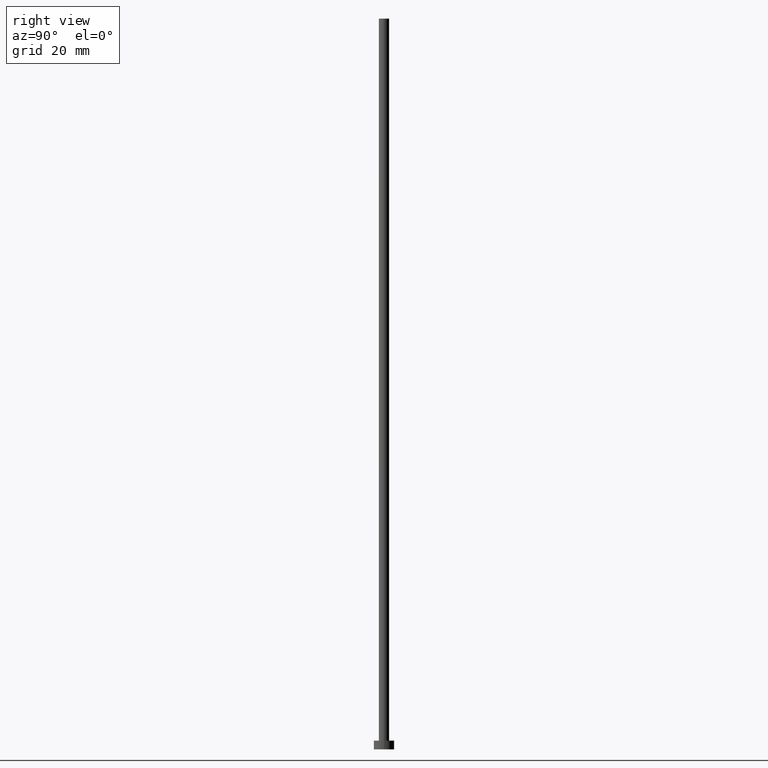
[diagram: clean part render]
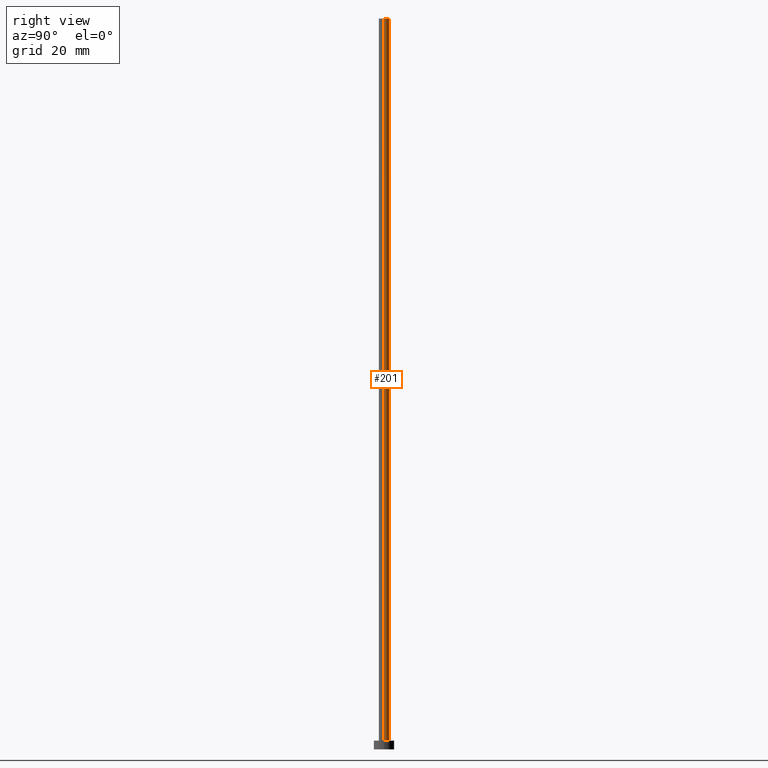
[diagram: same view with one face highlighted and labeled with its STEP entity id]
A machine part, right view. The second image highlights one B-rep face of the part: STEP entity #201.
In plain terms, the highlighted cylindrical surface (edge-blend (fillet) strip) has radius 1.75 mm, axis along (-0, -0, -1).
Its self-contained STEP definition (entity closure, byte-faithful):
#9 = AXIS2_PLACEMENT_3D ( 'NONE', #12, #167, #247 ) ;
#12 = CARTESIAN_POINT ( 'NONE',  ( 0.000000000000000000, 0.000000000000000000, 3.000000000000000000 ) ) ;
#18 = VECTOR ( 'NONE', #68, 1000.000000000000000 ) ;
#33 = VERTEX_POINT ( 'NONE', #185 ) ;
#37 = EDGE_CURVE ( 'NONE', #133, #110, #192, .T. ) ;
#39 = LINE ( 'NONE', #188, #205 ) ;
#49 = LINE ( 'NONE', #243, #18 ) ;
#56 = DIRECTION ( 'NONE',  ( -1.000000000000000000, 0.000000000000000000, 0.000000000000000000 ) ) ;
#68 = DIRECTION ( 'NONE',  ( -0.000000000000000000, -0.000000000000000000, -1.000000000000000000 ) ) ;
#74 = CARTESIAN_POINT ( 'NONE',  ( -1.750000000000000000, 0.000000000000000000, 3.000000000000000000 ) ) ;
#77 = AXIS2_PLACEMENT_3D ( 'NONE', #131, #197, #88 ) ;
#88 = DIRECTION ( 'NONE',  ( 1.000000000000000000, 0.000000000000000000, 0.000000000000000000 ) ) ;
#97 = EDGE_CURVE ( 'NONE', #110, #149, #49, .T. ) ;
#110 = VERTEX_POINT ( 'NONE', #138 ) ;
#111 = EDGE_LOOP ( 'NONE', ( #224, #152, #237, #203 ) ) ;
#114 = DIRECTION ( 'NONE',  ( -0.000000000000000000, -0.000000000000000000, -1.000000000000000000 ) ) ;
#131 = CARTESIAN_POINT ( 'NONE',  ( 0.000000000000000000, 0.000000000000000000, 250.0000000000000000 ) ) ;
#133 = VERTEX_POINT ( 'NONE', #155 ) ;
#138 = CARTESIAN_POINT ( 'NONE',  ( -1.750000000000000000, 0.000000000000000000, 250.0000000000000000 ) ) ;
#149 = VERTEX_POINT ( 'NONE', #74 ) ;
#152 = ORIENTED_EDGE ( 'NONE', *, *, #219, .T. ) ;
#155 = CARTESIAN_POINT ( 'NONE',  ( 1.750000000000000000, 2.143131898507868297E-16, 250.0000000000000000 ) ) ;
#167 = DIRECTION ( 'NONE',  ( 0.000000000000000000, 0.000000000000000000, 1.000000000000000000 ) ) ;
#185 = CARTESIAN_POINT ( 'NONE',  ( 1.750000000000000000, 2.143131898507868297E-16, 3.000000000000000000 ) ) ;
#186 = CYLINDRICAL_SURFACE ( 'NONE', #214, 1.750000000000000000 ) ;
#188 = CARTESIAN_POINT ( 'NONE',  ( 1.750000000000000000, 2.143131898507868297E-16, 250.0000000000000000 ) ) ;
#192 = CIRCLE ( 'NONE', #77, 1.750000000000000000 ) ;
#197 = DIRECTION ( 'NONE',  ( 0.000000000000000000, 0.000000000000000000, 1.000000000000000000 ) ) ;
#201 = ADVANCED_FACE ( 'NONE', ( #208 ), #186, .T. ) ;
#203 = ORIENTED_EDGE ( 'NONE', *, *, #97, .F. ) ;
#205 = VECTOR ( 'NONE', #114, 1000.000000000000000 ) ;
#206 = DIRECTION ( 'NONE',  ( -0.000000000000000000, -0.000000000000000000, -1.000000000000000000 ) ) ;
#208 = FACE_OUTER_BOUND ( 'NONE', #111, .T. ) ;
#210 = CARTESIAN_POINT ( 'NONE',  ( 0.000000000000000000, 0.000000000000000000, 250.0000000000000000 ) ) ;
#214 = AXIS2_PLACEMENT_3D ( 'NONE', #210, #206, #56 ) ;
#219 = EDGE_CURVE ( 'NONE', #133, #33, #39, .T. ) ;
#224 = ORIENTED_EDGE ( 'NONE', *, *, #37, .F. ) ;
#231 = EDGE_CURVE ( 'NONE', #33, #149, #242, .T. ) ;
#237 = ORIENTED_EDGE ( 'NONE', *, *, #231, .T. ) ;
#242 = CIRCLE ( 'NONE', #9, 1.750000000000000000 ) ;
#243 = CARTESIAN_POINT ( 'NONE',  ( -1.750000000000000000, 0.000000000000000000, 250.0000000000000000 ) ) ;
#247 = DIRECTION ( 'NONE',  ( 1.000000000000000000, 0.000000000000000000, 0.000000000000000000 ) ) ;